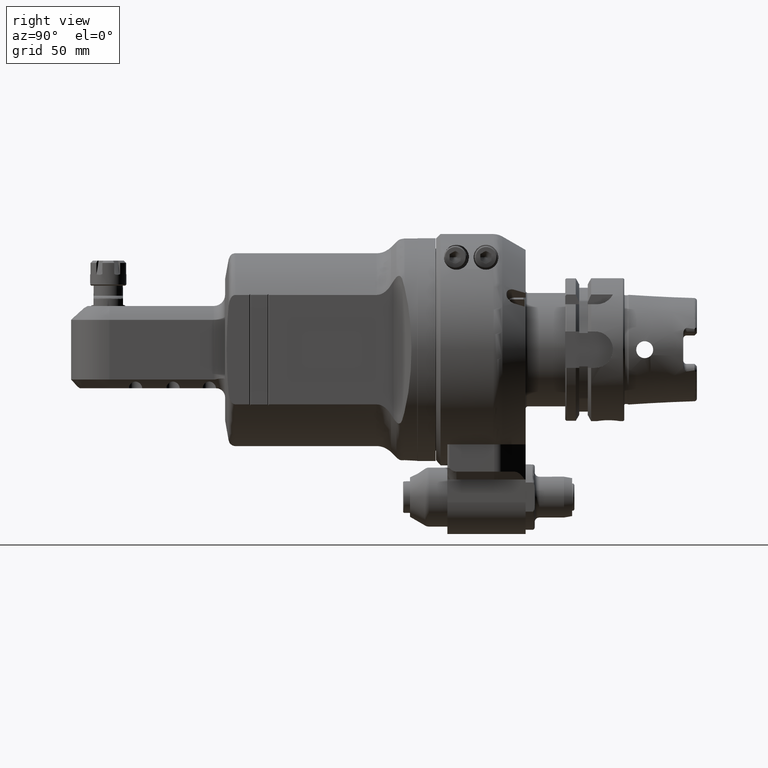
[diagram: clean part render]
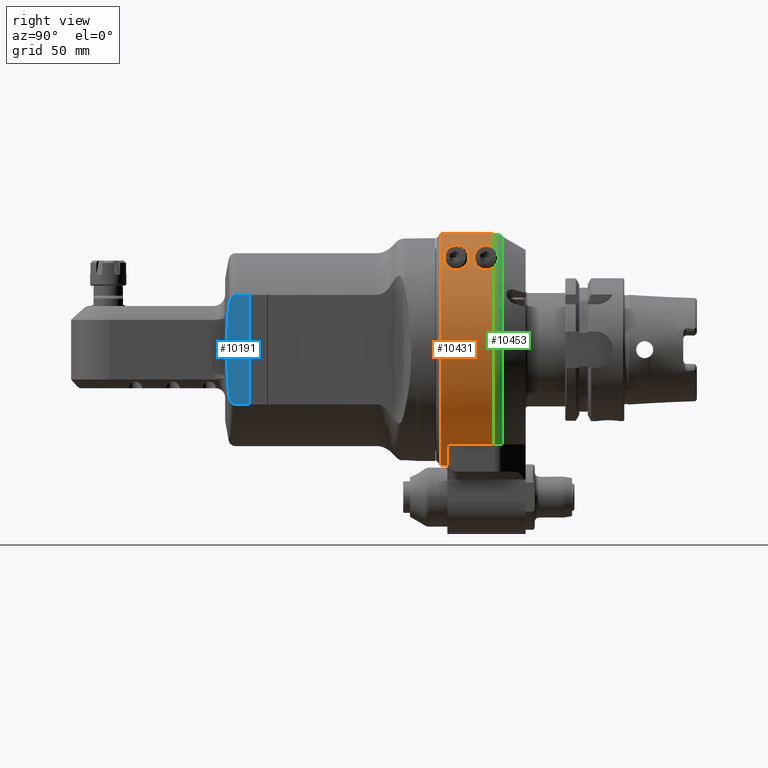
[diagram: same view with three faces highlighted in distinct colors, each labeled with its STEP entity id]
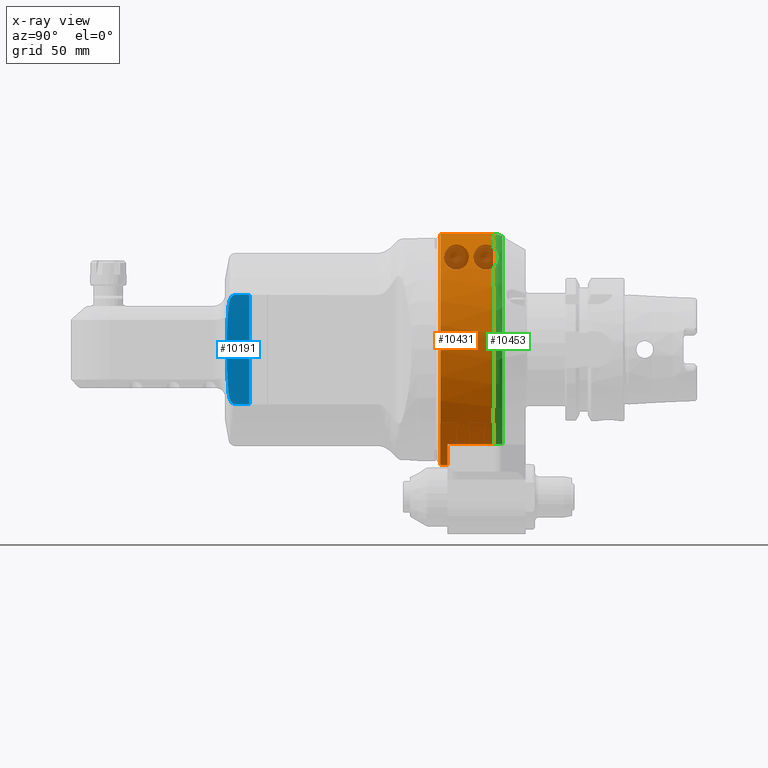
[diagram: x-ray of the same camera — body ghosted, the three highlighted faces saturated]
A machine part, right view with three faces highlighted in distinct colors.
The next image is the same camera in x-ray (body ghosted, the three faces saturated) — at least one of them is partly hidden behind the body in this view.
Their STEP definitions:

[orange] entity #10431 — the highlighted cylindrical surface (partial cylindrical patch) has radius 51 mm, axis along (0, -1, 0).
#427=B_SPLINE_CURVE_WITH_KNOTS('',3,(#17072,#17073,#17074,#17075,#17076,
#17077,#17078,#17079,#17080,#17081,#17082,#17083,#17084,#17085,#17086,#17087,
#17088,#17089),.UNSPECIFIED.,.F.,.F.,(4,2,2,2,2,2,2,2,4),(1.24497996375057,
1.57211089183856,1.89924181992655,2.10031433028339,2.30138684064023,2.50245935099707,
2.70353186135391,3.0306627894419,3.35779371752989),.UNSPECIFIED.);
#430=B_SPLINE_CURVE_WITH_KNOTS('',3,(#17167,#17168,#17169,#17170,#17171,
#17172),.UNSPECIFIED.,.F.,.F.,(4,2,4),(-0.351622839102922,-0.201072510356838,
0.),.UNSPECIFIED.);
#431=B_SPLINE_CURVE_WITH_KNOTS('',3,(#17174,#17175,#17176,#17177,#17178,
#17179,#17180,#17181,#17182,#17183,#17184,#17185,#17186,#17187,#17188,#17189,
#17190,#17191,#17192,#17193,#17194,#17195,#17196,#17197,#17198,#17199),
 .UNSPECIFIED.,.F.,.F.,(4,2,2,2,2,2,2,2,2,2,2,2,4),(0.,0.201072510356838,
0.402145020713677,0.729275948801668,1.05640687688966,1.45814522272358,1.85988356855749,
2.08063520459886,2.19101102261954,2.30138684064023,2.41176265866091,2.52213847668159,
2.7154535046118),.UNSPECIFIED.);
#432=B_SPLINE_CURVE_WITH_KNOTS('',3,(#17203,#17204,#17205,#17206,#17207,
#17208,#17209,#17210,#17211,#17212,#17213,#17214,#17215,#17216,#17217,#17218,
#17219,#17220,#17221,#17222,#17223,#17224,#17225),.UNSPECIFIED.,.F.,.F.,
(4,2,2,2,2,3,2,2,2,2,4),(-1.24497996375057,-0.843241617916652,-0.441503272082734,
-0.220751636041367,-0.110375818020684,0.,0.110375818020684,0.220751636041367,
0.441503272082734,0.843241617916652,1.24497996375057),.UNSPECIFIED.);
#585=FACE_BOUND('',#2191,.T.);
#833=CIRCLE('',#11322,51.);
#834=CIRCLE('',#11323,51.);
#835=CIRCLE('',#11324,51.);
#836=CIRCLE('',#11325,51.);
#837=CIRCLE('',#11326,51.);
#1190=CYLINDRICAL_SURFACE('',#11321,51.);
#1526=FACE_OUTER_BOUND('',#2190,.T.);
#2190=EDGE_LOOP('',(#7936,#7937,#7938,#7939,#7940,#7941,#7942,#7943,#7944,
#7945,#7946));
#2191=EDGE_LOOP('',(#7947,#7948));
#2900=LINE('',#17110,#3630);
#2902=LINE('',#17114,#3632);
#2908=LINE('',#17161,#3638);
#2909=LINE('',#17202,#3639);
#3630=VECTOR('',#13198,20.23205080757);
#3632=VECTOR('',#13200,20.23205080757);
#3638=VECTOR('',#13212,23.23206191748);
#3639=VECTOR('',#13221,23.23206611221);
#4472=VERTEX_POINT('',#17068);
#4474=VERTEX_POINT('',#17071);
#4481=VERTEX_POINT('',#17108);
#4482=VERTEX_POINT('',#17109);
#4483=VERTEX_POINT('',#17111);
#4484=VERTEX_POINT('',#17113);
#4494=VERTEX_POINT('',#17157);
#4495=VERTEX_POINT('',#17158);
#4496=VERTEX_POINT('',#17160);
#4497=VERTEX_POINT('',#17164);
#4498=VERTEX_POINT('',#17166);
#4499=VERTEX_POINT('',#17173);
#4500=VERTEX_POINT('',#17200);
#5719=EDGE_CURVE('',#4474,#4472,#427,.T.);
#5729=EDGE_CURVE('',#4481,#4482,#2900,.T.);
#5731=EDGE_CURVE('',#4484,#4483,#2902,.T.);
#5742=EDGE_CURVE('',#4494,#4495,#833,.T.);
#5743=EDGE_CURVE('',#4494,#4496,#2908,.T.);
#5744=EDGE_CURVE('',#4484,#4496,#834,.T.);
#5745=EDGE_CURVE('',#4481,#4483,#835,.T.);
#5746=EDGE_CURVE('',#4497,#4482,#836,.T.);
#5747=EDGE_CURVE('',#4497,#4498,#430,.T.);
#5748=EDGE_CURVE('',#4498,#4499,#431,.T.);
#5749=EDGE_CURVE('',#4500,#4499,#837,.T.);
#5750=EDGE_CURVE('',#4500,#4495,#2909,.T.);
#5751=EDGE_CURVE('',#4472,#4474,#432,.T.);
#7936=ORIENTED_EDGE('',*,*,#5742,.F.);
#7937=ORIENTED_EDGE('',*,*,#5743,.T.);
#7938=ORIENTED_EDGE('',*,*,#5744,.F.);
#7939=ORIENTED_EDGE('',*,*,#5731,.T.);
#7940=ORIENTED_EDGE('',*,*,#5745,.F.);
#7941=ORIENTED_EDGE('',*,*,#5729,.T.);
#7942=ORIENTED_EDGE('',*,*,#5746,.F.);
#7943=ORIENTED_EDGE('',*,*,#5747,.T.);
#7944=ORIENTED_EDGE('',*,*,#5748,.T.);
#7945=ORIENTED_EDGE('',*,*,#5749,.F.);
#7946=ORIENTED_EDGE('',*,*,#5750,.T.);
#7947=ORIENTED_EDGE('',*,*,#5751,.T.);
#7948=ORIENTED_EDGE('',*,*,#5719,.T.);
#10431=ADVANCED_FACE('',(#1526,#585),#1190,.T.);
#11321=AXIS2_PLACEMENT_3D('',#17156,#13208,#13209);
#11322=AXIS2_PLACEMENT_3D('',#17159,#13210,#13211);
#11323=AXIS2_PLACEMENT_3D('',#17162,#13213,#13214);
#11324=AXIS2_PLACEMENT_3D('',#17163,#13215,#13216);
#11325=AXIS2_PLACEMENT_3D('',#17165,#13217,#13218);
#11326=AXIS2_PLACEMENT_3D('',#17201,#13219,#13220);
#13198=DIRECTION('',(0.,1.,0.));
#13200=DIRECTION('',(0.,-1.,0.));
#13208=DIRECTION('center_axis',(0.,-1.,0.));
#13209=DIRECTION('ref_axis',(1.05873409698834E-10,0.,-1.));
#13210=DIRECTION('center_axis',(0.,-1.,0.));
#13211=DIRECTION('ref_axis',(0.,0.,-1.));
#13212=DIRECTION('',(1.230523343791E-9,1.,3.620724304585E-11));
#13213=DIRECTION('center_axis',(0.,1.,0.));
#13214=DIRECTION('ref_axis',(-0.574324904998308,0.,-0.818627450980411));
#13215=DIRECTION('center_axis',(0.,1.,0.));
#13216=DIRECTION('ref_axis',(0.,0.,-1.));
#13217=DIRECTION('center_axis',(0.,1.,0.));
#13218=DIRECTION('ref_axis',(0.702983781088798,0.,0.711205879844998));
#13219=DIRECTION('center_axis',(0.,1.,0.));
#13220=DIRECTION('ref_axis',(0.0294117647058804,0.,0.999567380468613));
#13221=DIRECTION('',(1.695142412605E-9,-1.,-4.9878538981E-11));
#17068=CARTESIAN_POINT('',(30.70418728464,3.5,40.7216512827));
#17071=CARTESIAN_POINT('',(30.7041872846388,14.5,40.7216512827));
#17072=CARTESIAN_POINT('Ctrl Pts',(30.7041872846388,14.5,40.7216512827));
#17073=CARTESIAN_POINT('Ctrl Pts',(31.5748612439451,14.5,40.0651617871045));
#17074=CARTESIAN_POINT('Ctrl Pts',(32.5000944024137,14.3775309176086,39.319256727814));
#17075=CARTESIAN_POINT('Ctrl Pts',(34.1986505928683,13.7586754272403,37.8511872002494));
#17076=CARTESIAN_POINT('Ctrl Pts',(34.9727734951554,13.2627488095064,37.1297545962508));
#17077=CARTESIAN_POINT('Ctrl Pts',(35.9500095679527,12.149351972259,36.1782586100401));
#17078=CARTESIAN_POINT('Ctrl Pts',(36.2931969488346,11.6039156243507,35.8317714924385));
#17079=CARTESIAN_POINT('Ctrl Pts',(36.760284817991,10.364786222781,35.3524177755747));
#17080=CARTESIAN_POINT('Ctrl Pts',(36.8840789626077,9.67024170118946,35.2216512827));
#17081=CARTESIAN_POINT('Ctrl Pts',(36.8840789626077,8.32975829881054,35.2216512827));
#17082=CARTESIAN_POINT('Ctrl Pts',(36.760284817991,7.63521377721896,35.3524177755747));
#17083=CARTESIAN_POINT('Ctrl Pts',(36.2931969488346,6.39608437564928,35.8317714924385));
#17084=CARTESIAN_POINT('Ctrl Pts',(35.9500095679527,5.85064802774095,36.1782586100401));
#17085=CARTESIAN_POINT('Ctrl Pts',(34.9727734951554,4.73725119049356,37.1297545962508));
#17086=CARTESIAN_POINT('Ctrl Pts',(34.1986505928683,4.24132457275967,37.8511872002494));
#17087=CARTESIAN_POINT('Ctrl Pts',(32.5000944024137,3.62246908239144,39.319256727814));
#17088=CARTESIAN_POINT('Ctrl Pts',(31.5748612439451,3.5,40.0651617871045));
#17089=CARTESIAN_POINT('Ctrl Pts',(30.7041872846388,3.5,40.7216512827));
#17108=CARTESIAN_POINT('',(29.29057015492,5.,-41.75));
#17109=CARTESIAN_POINT('',(29.29057015492,25.23205080757,-41.75));
#17110=CARTESIAN_POINT('',(29.29057015492,5.,-41.75));
#17111=CARTESIAN_POINT('',(-29.29057015492,5.,-41.75));
#17113=CARTESIAN_POINT('',(-29.29057015492,25.23205080757,-41.75));
#17114=CARTESIAN_POINT('',(-29.29057015492,25.23205080757,-41.75));
#17156=CARTESIAN_POINT('Origin',(0.,31.,0.));
#17157=CARTESIAN_POINT('',(-1.5,2.,50.9779364039));
#17158=CARTESIAN_POINT('',(1.5,2.,50.9779364039));
#17159=CARTESIAN_POINT('Origin',(0.,2.,0.));
#17160=CARTESIAN_POINT('',(-1.49999998570621,25.2320508150874,50.9779364043201));
#17161=CARTESIAN_POINT('',(-1.5,2.,50.9779364039));
#17162=CARTESIAN_POINT('Origin',(0.,25.23205080757,0.));
#17163=CARTESIAN_POINT('Origin',(0.,5.,0.));
#17164=CARTESIAN_POINT('',(35.85217283553,25.23205080757,36.27149987209));
#17165=CARTESIAN_POINT('Origin',(0.,25.23205080757,0.));
#17166=CARTESIAN_POINT('',(36.8840789626077,22.,35.2216512827));
#17167=CARTESIAN_POINT('Ctrl Pts',(35.8521728355289,25.2320508075659,36.2714998720946));
#17168=CARTESIAN_POINT('Ctrl Pts',(36.116701141561,24.872037357752,36.0100297211167));
#17169=CARTESIAN_POINT('Ctrl Pts',(36.3518780139684,24.44824163253,35.7715494474255));
#17170=CARTESIAN_POINT('Ctrl Pts',(36.760284817991,23.364786222781,35.3524177755747));
#17171=CARTESIAN_POINT('Ctrl Pts',(36.8840789626077,22.6702417011895,35.2216512827));
#17172=CARTESIAN_POINT('Ctrl Pts',(36.8840789626077,22.,35.2216512827));
#17173=CARTESIAN_POINT('',(23.67505525733,25.23205080757,45.1718026933));
#17174=CARTESIAN_POINT('Ctrl Pts',(36.8840789626077,22.,35.2216512827));
#17175=CARTESIAN_POINT('Ctrl Pts',(36.8840789626077,21.3297582988105,35.2216512827));
#17176=CARTESIAN_POINT('Ctrl Pts',(36.760284817991,20.635213777219,35.3524177755747));
#17177=CARTESIAN_POINT('Ctrl Pts',(36.2931969488346,19.3960843756493,35.8317714924385));
#17178=CARTESIAN_POINT('Ctrl Pts',(35.9500095679527,18.850648027741,36.1782586100401));
#17179=CARTESIAN_POINT('Ctrl Pts',(34.9727734951554,17.7372511904936,37.1297545962508));
#17180=CARTESIAN_POINT('Ctrl Pts',(34.1986505928683,17.2413245727597,37.8511872002494));
#17181=CARTESIAN_POINT('Ctrl Pts',(32.5000944024137,16.6224690823914,39.319256727814));
#17182=CARTESIAN_POINT('Ctrl Pts',(31.5748612439451,16.5,40.0651617871045));
#17183=CARTESIAN_POINT('Ctrl Pts',(29.6349422633357,16.5,41.5278636624324));
#17184=CARTESIAN_POINT('Ctrl Pts',(28.4428786872814,16.6828935944427,42.355228362554));
#17185=CARTESIAN_POINT('Ctrl Pts',(26.0747465478085,17.4026147018995,43.8528254301532));
#17186=CARTESIAN_POINT('Ctrl Pts',(24.8972647332227,17.9314939989374,44.5246315328702));
#17187=CARTESIAN_POINT('Ctrl Pts',(23.326334884601,19.001270294294,45.3572445916551));
#17188=CARTESIAN_POINT('Ctrl Pts',(22.7481982089167,19.480842706606,45.6482368635351));
#17189=CARTESIAN_POINT('Ctrl Pts',(22.0845481334827,20.3308258147761,45.9710043968678));
#17190=CARTESIAN_POINT('Ctrl Pts',(21.8974583438779,20.6354867073276,46.0599916909384));
#17191=CARTESIAN_POINT('Ctrl Pts',(21.6321449190877,21.286197560497,46.1851905126261));
#17192=CARTESIAN_POINT('Ctrl Pts',(21.5536296873747,21.6320806065977,46.2216512827));
#17193=CARTESIAN_POINT('Ctrl Pts',(21.5536296873747,22.3679193934023,46.2216512827));
#17194=CARTESIAN_POINT('Ctrl Pts',(21.6321449190877,22.713802439503,46.1851905126261));
#17195=CARTESIAN_POINT('Ctrl Pts',(21.8974583438779,23.3645132926724,46.0599916909384));
#17196=CARTESIAN_POINT('Ctrl Pts',(22.0845481334827,23.6691741852239,45.9710043968678));
#17197=CARTESIAN_POINT('Ctrl Pts',(22.6932093917128,24.4487292658961,45.6749807840842));
#17198=CARTESIAN_POINT('Ctrl Pts',(23.1848210334514,24.8782785168307,45.4287400225037));
#17199=CARTESIAN_POINT('Ctrl Pts',(23.6750552573295,25.2320508075737,45.1718026932997));
#17200=CARTESIAN_POINT('',(1.499999980309,25.2320508231036,50.9779364044793));
#17201=CARTESIAN_POINT('Origin',(0.,25.23205080757,0.));
#17202=CARTESIAN_POINT('',(1.499999960618,25.23206611221,50.97793640506));
#17203=CARTESIAN_POINT('Ctrl Pts',(30.7041872846388,3.5,40.7216512827));
#17204=CARTESIAN_POINT('Ctrl Pts',(29.6349422633357,3.5,41.5278636624324));
#17205=CARTESIAN_POINT('Ctrl Pts',(28.4428786872814,3.6828935944427,42.355228362554));
#17206=CARTESIAN_POINT('Ctrl Pts',(26.0747465478085,4.40261470189946,43.8528254301532));
#17207=CARTESIAN_POINT('Ctrl Pts',(24.8972647332227,4.93149399893739,44.5246315328702));
#17208=CARTESIAN_POINT('Ctrl Pts',(23.326334884601,6.00127029429395,45.3572445916551));
#17209=CARTESIAN_POINT('Ctrl Pts',(22.7481982089167,6.48084270660602,45.6482368635351));
#17210=CARTESIAN_POINT('Ctrl Pts',(22.0845481334827,7.33082581477611,45.9710043968678));
#17211=CARTESIAN_POINT('Ctrl Pts',(21.8974583438779,7.63548670732757,46.0599916909384));
#17212=CARTESIAN_POINT('Ctrl Pts',(21.6321449190877,8.28619756049704,46.1851905126261));
#17213=CARTESIAN_POINT('Ctrl Pts',(21.5536296873747,8.63208060659772,46.2216512827));
#17214=CARTESIAN_POINT('Ctrl Pts',(21.5536296873747,9.,46.2216512827));
#17215=CARTESIAN_POINT('Ctrl Pts',(21.5536296873747,9.36791939340228,46.2216512827));
#17216=CARTESIAN_POINT('Ctrl Pts',(21.6321449190877,9.71380243950296,46.1851905126261));
#17217=CARTESIAN_POINT('Ctrl Pts',(21.8974583438779,10.3645132926724,46.0599916909384));
#17218=CARTESIAN_POINT('Ctrl Pts',(22.0845481334827,10.6691741852239,45.9710043968678));
#17219=CARTESIAN_POINT('Ctrl Pts',(22.7481982089167,11.519157293394,45.6482368635351));
#17220=CARTESIAN_POINT('Ctrl Pts',(23.326334884601,11.998729705706,45.3572445916551));
#17221=CARTESIAN_POINT('Ctrl Pts',(24.8972647332227,13.0685060010626,44.5246315328702));
#17222=CARTESIAN_POINT('Ctrl Pts',(26.0747465478085,13.5973852981005,43.8528254301532));
#17223=CARTESIAN_POINT('Ctrl Pts',(28.4428786872814,14.3171064055573,42.355228362554));
#17224=CARTESIAN_POINT('Ctrl Pts',(29.6349422633357,14.5,41.5278636624324));
#17225=CARTESIAN_POINT('Ctrl Pts',(30.7041872846388,14.5,40.7216512827));

[blue] entity #10191 — the highlighted planar face has unit normal (-1, -0, 0).
#202=(
BOUNDED_CURVE()
B_SPLINE_CURVE(2,(#15160,#15161,#15162),.UNSPECIFIED.,.F.,.F.)
B_SPLINE_CURVE_WITH_KNOTS((3,3),(-12.6210236870325,-5.71470552981421),
 .UNSPECIFIED.)
CURVE()
GEOMETRIC_REPRESENTATION_ITEM()
RATIONAL_B_SPLINE_CURVE((1.76632585036114,2.01971511098614,1.76632585036125))
REPRESENTATION_ITEM('')
);
#364=B_SPLINE_CURVE_WITH_KNOTS('',3,(#15147,#15148,#15149,#15150,#15151,
#15152,#15153,#15154,#15155,#15156,#15157,#15158),.UNSPECIFIED.,.F.,.F.,
(4,2,2,2,2,4),(2.46657715541887,2.50162802277669,2.64097677020256,2.82159773617527,
2.9439757659315,3.03392436585055),.UNSPECIFIED.);
#365=B_SPLINE_CURVE_WITH_KNOTS('',3,(#15163,#15164,#15165,#15166,#15167,
#15168,#15169,#15170,#15171,#15172,#15173,#15174),.UNSPECIFIED.,.F.,.F.,
(4,2,2,2,2,4),(-0.567347210432599,-0.532296343073863,-0.392947595647987,
-0.212326629675285,-0.089948599919054,0.),.UNSPECIFIED.);
#1286=FACE_OUTER_BOUND('',#1913,.T.);
#1913=EDGE_LOOP('',(#6762,#6763,#6764,#6765,#6766,#6767));
#2631=LINE('',#15124,#3361);
#2635=LINE('',#15142,#3365);
#2636=LINE('',#15145,#3366);
#3361=VECTOR('',#12059,6.182701105836);
#3365=VECTOR('',#12077,48.21825380496);
#3366=VECTOR('',#12080,6.182701070362);
#4106=VERTEX_POINT('',#15120);
#4108=VERTEX_POINT('',#15123);
#4115=VERTEX_POINT('',#15140);
#4116=VERTEX_POINT('',#15144);
#4117=VERTEX_POINT('',#15146);
#4118=VERTEX_POINT('',#15159);
#5154=EDGE_CURVE('',#4106,#4108,#2631,.T.);
#5164=EDGE_CURVE('',#4115,#4106,#2635,.T.);
#5165=EDGE_CURVE('',#4116,#4115,#2636,.T.);
#5166=EDGE_CURVE('',#4117,#4116,#364,.T.);
#5167=EDGE_CURVE('',#4117,#4118,#202,.T.);
#5168=EDGE_CURVE('',#4118,#4108,#365,.T.);
#6762=ORIENTED_EDGE('',*,*,#5154,.F.);
#6763=ORIENTED_EDGE('',*,*,#5164,.F.);
#6764=ORIENTED_EDGE('',*,*,#5165,.F.);
#6765=ORIENTED_EDGE('',*,*,#5166,.F.);
#6766=ORIENTED_EDGE('',*,*,#5167,.T.);
#6767=ORIENTED_EDGE('',*,*,#5168,.T.);
#9870=PLANE('',#10892);
#10191=ADVANCED_FACE('',(#1286),#9870,.F.);
#10892=AXIS2_PLACEMENT_3D('',#15143,#12078,#12079);
#12059=DIRECTION('',(1.,0.,0.));
#12077=DIRECTION('',(-7.35686812457E-10,1.,0.));
#12078=DIRECTION('center_axis',(0.,0.,-1.));
#12079=DIRECTION('ref_axis',(-1.,0.,0.));
#12080=DIRECTION('',(-1.,0.,0.));
#15120=CARTESIAN_POINT('',(156.2999995006,24.10912690248,35.));
#15123=CARTESIAN_POINT('',(162.4827006065,24.10912690248,35.));
#15124=CARTESIAN_POINT('',(156.2999995006,24.10912690248,35.));
#15140=CARTESIAN_POINT('',(156.2999995361,-24.10912690248,35.));
#15142=CARTESIAN_POINT('',(156.2999995361,-24.10912690248,35.));
#15143=CARTESIAN_POINT('Origin',(171.0626875,51.0000024,35.));
#15144=CARTESIAN_POINT('',(162.4827006065,-24.10912690248,35.));
#15145=CARTESIAN_POINT('',(162.4827006065,-24.10912690248,35.));
#15146=CARTESIAN_POINT('',(165.4371238655,-19.40814265492,35.));
#15147=CARTESIAN_POINT('Ctrl Pts',(165.437123865536,-19.4081426549231,35.));
#15148=CARTESIAN_POINT('Ctrl Pts',(165.426276398999,-19.5349992079517,35.));
#15149=CARTESIAN_POINT('Ctrl Pts',(165.413318899055,-19.662344600021,35.));
#15150=CARTESIAN_POINT('Ctrl Pts',(165.337852347106,-20.2944416956934,35.));
#15151=CARTESIAN_POINT('Ctrl Pts',(165.240769815228,-20.7944739252647,35.));
#15152=CARTESIAN_POINT('Ctrl Pts',(164.949185344859,-21.8204080913892,35.));
#15153=CARTESIAN_POINT('Ctrl Pts',(164.670559563708,-22.4870043767528,35.));
#15154=CARTESIAN_POINT('Ctrl Pts',(164.087790656587,-23.311912637599,35.));
#15155=CARTESIAN_POINT('Ctrl Pts',(163.744661873345,-23.6610326066405,35.));
#15156=CARTESIAN_POINT('Ctrl Pts',(163.127851965635,-24.0081108249595,35.));
#15157=CARTESIAN_POINT('Ctrl Pts',(162.782529272897,-24.1091269024824,35.));
#15158=CARTESIAN_POINT('Ctrl Pts',(162.4827006065,-24.1091269024824,35.));
#15159=CARTESIAN_POINT('',(165.4371238655,19.40814265491,35.));
#15160=CARTESIAN_POINT('Ctrl Pts',(165.437123865551,-19.4081426549244,35.));
#15161=CARTESIAN_POINT('Ctrl Pts',(167.096708435381,-3.81916720471054E-12,
35.));
#15162=CARTESIAN_POINT('Ctrl Pts',(165.437123865552,19.4081426549144,35.));
#15163=CARTESIAN_POINT('Ctrl Pts',(165.437123865537,19.4081426549131,35.));
#15164=CARTESIAN_POINT('Ctrl Pts',(165.426276399,19.5349992079451,35.));
#15165=CARTESIAN_POINT('Ctrl Pts',(165.413318899055,19.6623446000177,35.));
#15166=CARTESIAN_POINT('Ctrl Pts',(165.337852347106,20.2944416956934,35.));
#15167=CARTESIAN_POINT('Ctrl Pts',(165.240769815228,20.7944739252647,35.));
#15168=CARTESIAN_POINT('Ctrl Pts',(164.949185344859,21.8204080913892,35.));
#15169=CARTESIAN_POINT('Ctrl Pts',(164.670559563708,22.4870043767528,35.));
#15170=CARTESIAN_POINT('Ctrl Pts',(164.087790656587,23.311912637599,35.));
#15171=CARTESIAN_POINT('Ctrl Pts',(163.744661873345,23.6610326066405,35.));
#15172=CARTESIAN_POINT('Ctrl Pts',(163.127851965635,24.0081108249595,35.));
#15173=CARTESIAN_POINT('Ctrl Pts',(162.782529272897,24.1091269024824,35.));
#15174=CARTESIAN_POINT('Ctrl Pts',(162.4827006065,24.1091269024824,35.));

[green] entity #10453 — the highlighted toroidal blend (fillet) surface has major radius 43 mm and minor (blend) radius 8 mm.
#177=TOROIDAL_SURFACE('',#11371,43.,8.);
#429=B_SPLINE_CURVE_WITH_KNOTS('',3,(#17144,#17145,#17146,#17147,#17148,
#17149,#17150,#17151,#17152,#17153),.UNSPECIFIED.,.F.,.F.,(4,2,2,2,4),(-9.68559804021147,
-9.63577634006454,-9.4843525606202,-9.37005770955715,-9.2557628584941),
 .UNSPECIFIED.);
#444=B_SPLINE_CURVE_WITH_KNOTS('',3,(#17463,#17464,#17465,#17466,#17467,
#17468,#17469,#17470),.UNSPECIFIED.,.F.,.F.,(4,2,2,4),(4.34441023881693,
4.44441523838835,4.59248867498487,4.74056211158139),.UNSPECIFIED.);
#447=B_SPLINE_CURVE_WITH_KNOTS('',3,(#17502,#17503,#17504,#17505,#17506,
#17507,#17508,#17509,#17510,#17511,#17512,#17513,#17514,#17515,#17516,#17517),
 .UNSPECIFIED.,.F.,.F.,(4,3,3,3,3,4),(-9.34472443709596,-9.15576581563724,
-8.53592281537643,-8.19749167718029,-7.91960616501296,-7.85473194545352),
 .UNSPECIFIED.);
#836=CIRCLE('',#11325,51.);
#837=CIRCLE('',#11326,51.);
#858=CIRCLE('',#11368,49.92820323028);
#1548=FACE_OUTER_BOUND('',#2217,.T.);
#2217=EDGE_LOOP('',(#8072,#8073,#8074,#8075,#8076,#8077));
#4482=VERTEX_POINT('',#17109);
#4492=VERTEX_POINT('',#17140);
#4497=VERTEX_POINT('',#17164);
#4499=VERTEX_POINT('',#17173);
#4500=VERTEX_POINT('',#17200);
#4540=VERTEX_POINT('',#17451);
#5740=EDGE_CURVE('',#4492,#4482,#429,.T.);
#5746=EDGE_CURVE('',#4497,#4482,#836,.T.);
#5749=EDGE_CURVE('',#4500,#4499,#837,.T.);
#5812=EDGE_CURVE('',#4540,#4500,#444,.T.);
#5815=EDGE_CURVE('',#4492,#4540,#858,.T.);
#5820=EDGE_CURVE('',#4499,#4497,#447,.T.);
#8072=ORIENTED_EDGE('',*,*,#5815,.T.);
#8073=ORIENTED_EDGE('',*,*,#5812,.T.);
#8074=ORIENTED_EDGE('',*,*,#5749,.T.);
#8075=ORIENTED_EDGE('',*,*,#5820,.T.);
#8076=ORIENTED_EDGE('',*,*,#5746,.T.);
#8077=ORIENTED_EDGE('',*,*,#5740,.F.);
#10453=ADVANCED_FACE('',(#1548),#177,.T.);
#11325=AXIS2_PLACEMENT_3D('',#17165,#13217,#13218);
#11326=AXIS2_PLACEMENT_3D('',#17201,#13219,#13220);
#11368=AXIS2_PLACEMENT_3D('',#17476,#13333,#13334);
#11371=AXIS2_PLACEMENT_3D('',#17501,#13339,#13340);
#13217=DIRECTION('center_axis',(0.,1.,0.));
#13218=DIRECTION('ref_axis',(0.702983781088798,0.,0.711205879844998));
#13219=DIRECTION('center_axis',(0.,1.,0.));
#13220=DIRECTION('ref_axis',(0.0294117647058804,0.,0.999567380468613));
#13333=DIRECTION('center_axis',(0.,-1.,0.));
#13334=DIRECTION('ref_axis',(0.548423503116412,0.,-0.836200730225418));
#13339=DIRECTION('center_axis',(0.,-1.,0.));
#13340=DIRECTION('ref_axis',(0.,0.,1.));
#17109=CARTESIAN_POINT('',(29.29057015492,25.23205080757,-41.75));
#17140=CARTESIAN_POINT('',(27.38180011986,29.23205080757,-41.75));
#17144=CARTESIAN_POINT('Ctrl Pts',(27.3818001198576,29.2320508075675,-41.75));
#17145=CARTESIAN_POINT('Ctrl Pts',(27.5118698927609,29.1084978721799,-41.75));
#17146=CARTESIAN_POINT('Ctrl Pts',(27.63883358715,28.9796012581369,-41.75));
#17147=CARTESIAN_POINT('Ctrl Pts',(28.1311886381695,28.4412749376929,-41.75));
#17148=CARTESIAN_POINT('Ctrl Pts',(28.4521983127449,27.9932266664163,-41.75));
#17149=CARTESIAN_POINT('Ctrl Pts',(28.8694287521605,27.2119237728328,-41.75));
#17150=CARTESIAN_POINT('Ctrl Pts',(29.0288082766981,26.8258618631201,-41.75));
#17151=CARTESIAN_POINT('Ctrl Pts',(29.2396724058848,26.0264941442551,-41.75));
#17152=CARTESIAN_POINT('Ctrl Pts',(29.290570154915,25.6130336444468,-41.75));
#17153=CARTESIAN_POINT('Ctrl Pts',(29.290570154915,25.23205080757,-41.75));
#17164=CARTESIAN_POINT('',(35.85217283553,25.23205080757,36.27149987209));
#17165=CARTESIAN_POINT('Origin',(0.,25.23205080757,0.));
#17173=CARTESIAN_POINT('',(23.67505525733,25.23205080757,45.1718026933));
#17200=CARTESIAN_POINT('',(1.499999980309,25.2320508231036,50.9779364044793));
#17201=CARTESIAN_POINT('Origin',(0.,25.23205080757,0.));
#17451=CARTESIAN_POINT('',(1.50000006858959,29.2320587089715,49.9056612221311));
#17463=CARTESIAN_POINT('Ctrl Pts',(1.5,29.2320587100669,49.9056612240274));
#17464=CARTESIAN_POINT('Ctrl Pts',(1.5,28.9199628642827,50.0859316928166));
#17465=CARTESIAN_POINT('Ctrl Pts',(1.5,28.6009646113261,50.2413262775005));
#17466=CARTESIAN_POINT('Ctrl Pts',(1.5,27.8370100654999,50.5578441661684));
#17467=CARTESIAN_POINT('Ctrl Pts',(1.5,27.3203684112507,50.7191785472564));
#17468=CARTESIAN_POINT('Ctrl Pts',(1.5,26.2646778846743,50.9292248693063));
#17469=CARTESIAN_POINT('Ctrl Pts',(1.5,25.7256289314938,50.9779364038993));
#17470=CARTESIAN_POINT('Ctrl Pts',(1.5,25.23205080757,50.9779364038993));
#17476=CARTESIAN_POINT('Origin',(0.,29.23205080757,0.));
#17501=CARTESIAN_POINT('Origin',(0.,25.23205080757,0.));
#17502=CARTESIAN_POINT('Ctrl Pts',(23.6750552573282,25.2320508075727,45.1718026933004));
#17503=CARTESIAN_POINT('Ctrl Pts',(24.1931832058652,25.6059523067419,44.9002459459358));
#17504=CARTESIAN_POINT('Ctrl Pts',(24.7188029255043,25.9420066961405,44.5838219388063));
#17505=CARTESIAN_POINT('Ctrl Pts',(25.2564932996337,26.2317635357589,44.2347948006083));
#17506=CARTESIAN_POINT('Ctrl Pts',(27.0202848225547,27.1822560162222,43.0898773216229));
#17507=CARTESIAN_POINT('Ctrl Pts',(28.8794189915696,27.59137352447,41.6682943531785));
#17508=CARTESIAN_POINT('Ctrl Pts',(30.7375607372457,27.4830876369281,40.2906640836256));
#17509=CARTESIAN_POINT('Ctrl Pts',(31.7520967175735,27.4239640908754,39.5384849351282));
#17510=CARTESIAN_POINT('Ctrl Pts',(32.792654695621,27.2001167152264,38.766612129063));
#17511=CARTESIAN_POINT('Ctrl Pts',(33.6844936512154,26.8239051275729,38.0796938038265));
#17512=CARTESIAN_POINT('Ctrl Pts',(34.4167818391968,26.5149981213335,37.5156657665635));
#17513=CARTESIAN_POINT('Ctrl Pts',(35.0318289883247,26.1276341386836,37.0238735560993));
#17514=CARTESIAN_POINT('Ctrl Pts',(35.5266834858289,25.6160859153085,36.5775081079162));
#17515=CARTESIAN_POINT('Ctrl Pts',(35.6422105569262,25.4966615829652,36.4733011276266));
#17516=CARTESIAN_POINT('Ctrl Pts',(35.7518651548587,25.3685659302862,36.370647917166));
#17517=CARTESIAN_POINT('Ctrl Pts',(35.8521728355289,25.2320508075659,36.2714998720946));